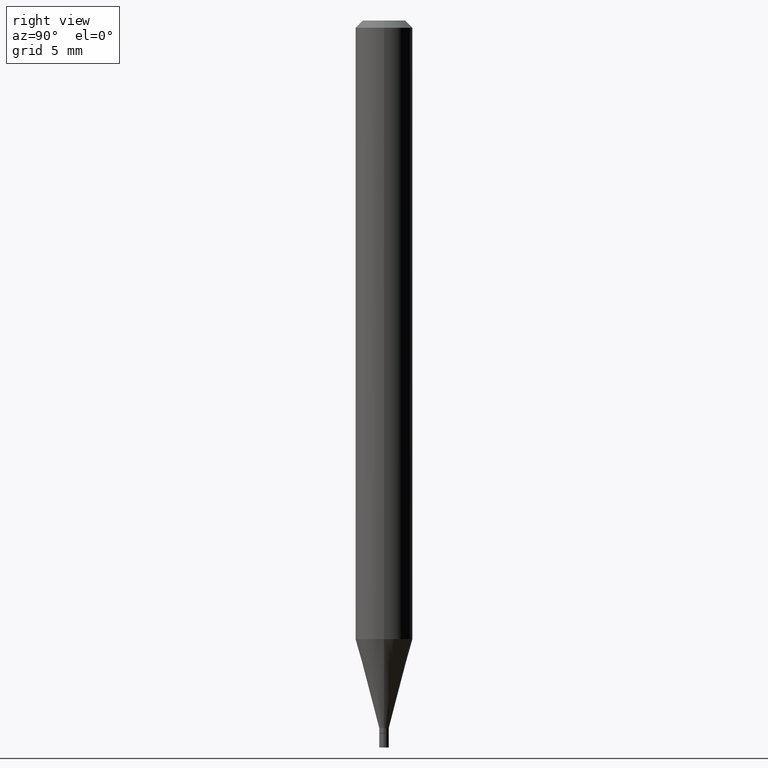
[diagram: clean part render]
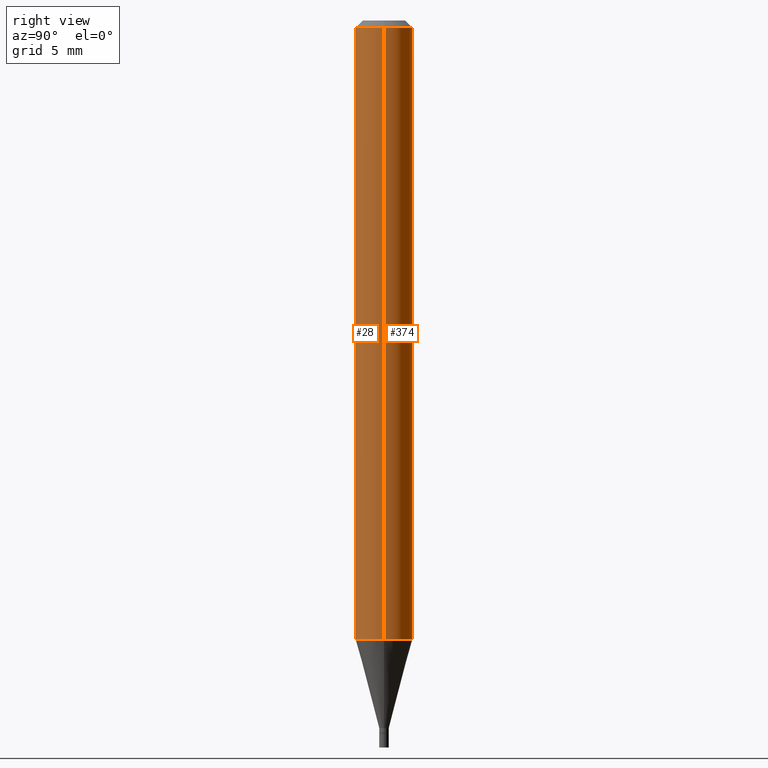
[diagram: same view with one multi-face feature highlighted, each face labeled with its STEP entity id]
A machine part, right view. The highlighted faces form ONE feature: a constant-radius fillet chain: 2 tangent blend faces with common blend radius 1.4999 mm. The faces share edges in the B-rep.
Their STEP definitions:
[1] entity #28 (Cylinder):
#2 = DIRECTION ( 'NONE',  ( -2.445468806185136877E-29, 3.491481338843145188E-15, 1.000000000000000000 ) ) ;
#10 = VECTOR ( 'NONE', #58, 39.37007874015748143 ) ;
#12 = ORIENTED_EDGE ( 'NONE', *, *, #289, .T. ) ;
#24 = ORIENTED_EDGE ( 'NONE', *, *, #135, .F. ) ;
#28 = ADVANCED_FACE ( 'NONE', ( #148 ), #100, .T. ) ;
#36 = DIRECTION ( 'NONE',  ( 1.000000000000000000, -6.982962677686273021E-15, 0.000000000000000000 ) ) ;
#46 = DIRECTION ( 'NONE',  ( -2.445468806185136597E-29, 3.491481338843145583E-15, 1.000000000000000000 ) ) ;
#53 = AXIS2_PLACEMENT_3D ( 'NONE', #294, #258, #351 ) ;
#58 = DIRECTION ( 'NONE',  ( -2.445468806185136877E-29, 3.491481338843145188E-15, 1.000000000000000000 ) ) ;
#93 = CIRCLE ( 'NONE', #422, 0.05904999999999999832 ) ;
#95 = CARTESIAN_POINT ( 'NONE',  ( -0.05904999999999999832, -1.834844512474547431E-15, -0.01499999999999999944 ) ) ;
#100 = CYLINDRICAL_SURFACE ( 'NONE', #53, 0.05904999999999999832 ) ;
#113 = CIRCLE ( 'NONE', #224, 0.05904999999999999832 ) ;
#135 = EDGE_CURVE ( 'NONE', #364, #317, #113, .T. ) ;
#148 = FACE_OUTER_BOUND ( 'NONE', #386, .T. ) ;
#158 = CARTESIAN_POINT ( 'NONE',  ( 0.05904999999999999832, -4.123439461173740327E-16, 2.879382386107500220E-30 ) ) ;
#166 = ORIENTED_EDGE ( 'NONE', *, *, #448, .F. ) ;
#186 = DIRECTION ( 'NONE',  ( 1.000000000000000000, -6.982962677686266711E-15, 0.000000000000000000 ) ) ;
#224 = AXIS2_PLACEMENT_3D ( 'NONE', #437, #46, #186 ) ;
#228 = LINE ( 'NONE', #158, #10 ) ;
#250 = DIRECTION ( 'NONE',  ( -2.445468806185136597E-29, 3.491481338843145583E-15, 1.000000000000000000 ) ) ;
#258 = DIRECTION ( 'NONE',  ( -2.445468806185136597E-29, 3.491481338843145583E-15, 1.000000000000000000 ) ) ;
#263 = ORIENTED_EDGE ( 'NONE', *, *, #441, .T. ) ;
#270 = CARTESIAN_POINT ( 'NONE',  ( 0.05904999999999999138, -4.868811721916501294E-15, -1.276383100267611814 ) ) ;
#281 = CARTESIAN_POINT ( 'NONE',  ( -0.05904999999999999832, 4.195754854663391478E-16, -2.904631170795521892E-30 ) ) ;
#289 = EDGE_CURVE ( 'NONE', #329, #317, #228, .T. ) ;
#294 = CARTESIAN_POINT ( 'NONE',  ( 0.000000000000000000, 0.000000000000000000, 0.000000000000000000 ) ) ;
#317 = VERTEX_POINT ( 'NONE', #417 ) ;
#329 = VERTEX_POINT ( 'NONE', #270 ) ;
#351 = DIRECTION ( 'NONE',  ( 1.000000000000000000, -6.982962677686266711E-15, 4.876176775795936353E-29 ) ) ;
#364 = VERTEX_POINT ( 'NONE', #95 ) ;
#386 = EDGE_LOOP ( 'NONE', ( #166, #263, #12, #24 ) ) ;
#398 = CARTESIAN_POINT ( 'NONE',  ( 3.121355056446320430E-29, -4.456467775799125585E-15, -1.276383100267611814 ) ) ;
#417 = CARTESIAN_POINT ( 'NONE',  ( 0.05904999999999999832, -4.647161662000212105E-16, -0.01499999999999999944 ) ) ;
#420 = VECTOR ( 'NONE', #2, 39.37007874015748143 ) ;
#422 = AXIS2_PLACEMENT_3D ( 'NONE', #398, #250, #36 ) ;
#425 = CARTESIAN_POINT ( 'NONE',  ( -0.05904999999999999138, -4.036892290332787669E-15, -1.276383100267611814 ) ) ;
#432 = VERTEX_POINT ( 'NONE', #425 ) ;
#437 = CARTESIAN_POINT ( 'NONE',  ( 3.668203209277705088E-31, -5.237222008264718399E-17, -0.01499999999999999944 ) ) ;
#441 = EDGE_CURVE ( 'NONE', #432, #329, #93, .T. ) ;
#448 = EDGE_CURVE ( 'NONE', #432, #364, #466, .T. ) ;
#466 = LINE ( 'NONE', #281, #420 ) ;
[2] entity #374 (Cylinder):
#2 = DIRECTION ( 'NONE',  ( -2.445468806185136877E-29, 3.491481338843145188E-15, 1.000000000000000000 ) ) ;
#10 = VECTOR ( 'NONE', #58, 39.37007874015748143 ) ;
#49 = CARTESIAN_POINT ( 'NONE',  ( 3.668203209277705088E-31, -5.237222008264718399E-17, -0.01499999999999999944 ) ) ;
#58 = DIRECTION ( 'NONE',  ( -2.445468806185136877E-29, 3.491481338843145188E-15, 1.000000000000000000 ) ) ;
#65 = CARTESIAN_POINT ( 'NONE',  ( 0.000000000000000000, 0.000000000000000000, 0.000000000000000000 ) ) ;
#89 = ORIENTED_EDGE ( 'NONE', *, *, #289, .F. ) ;
#91 = DIRECTION ( 'NONE',  ( 1.000000000000000000, -6.982962677686273021E-15, 0.000000000000000000 ) ) ;
#95 = CARTESIAN_POINT ( 'NONE',  ( -0.05904999999999999832, -1.834844512474547431E-15, -0.01499999999999999944 ) ) ;
#124 = DIRECTION ( 'NONE',  ( -2.445468806185136597E-29, 3.491481338843145583E-15, 1.000000000000000000 ) ) ;
#143 = EDGE_CURVE ( 'NONE', #329, #432, #285, .T. ) ;
#158 = CARTESIAN_POINT ( 'NONE',  ( 0.05904999999999999832, -4.123439461173740327E-16, 2.879382386107500220E-30 ) ) ;
#177 = EDGE_CURVE ( 'NONE', #317, #364, #357, .T. ) ;
#180 = ORIENTED_EDGE ( 'NONE', *, *, #448, .T. ) ;
#183 = ORIENTED_EDGE ( 'NONE', *, *, #143, .T. ) ;
#184 = ORIENTED_EDGE ( 'NONE', *, *, #177, .F. ) ;
#199 = DIRECTION ( 'NONE',  ( -2.445468806185136597E-29, 3.491481338843145583E-15, 1.000000000000000000 ) ) ;
#201 = AXIS2_PLACEMENT_3D ( 'NONE', #444, #124, #91 ) ;
#204 = EDGE_LOOP ( 'NONE', ( #183, #180, #184, #89 ) ) ;
#228 = LINE ( 'NONE', #158, #10 ) ;
#235 = CYLINDRICAL_SURFACE ( 'NONE', #350, 0.05904999999999999832 ) ;
#270 = CARTESIAN_POINT ( 'NONE',  ( 0.05904999999999999138, -4.868811721916501294E-15, -1.276383100267611814 ) ) ;
#281 = CARTESIAN_POINT ( 'NONE',  ( -0.05904999999999999832, 4.195754854663391478E-16, -2.904631170795521892E-30 ) ) ;
#285 = CIRCLE ( 'NONE', #201, 0.05904999999999999832 ) ;
#289 = EDGE_CURVE ( 'NONE', #329, #317, #228, .T. ) ;
#307 = FACE_OUTER_BOUND ( 'NONE', #204, .T. ) ;
#314 = AXIS2_PLACEMENT_3D ( 'NONE', #49, #342, #451 ) ;
#317 = VERTEX_POINT ( 'NONE', #417 ) ;
#329 = VERTEX_POINT ( 'NONE', #270 ) ;
#342 = DIRECTION ( 'NONE',  ( -2.445468806185136597E-29, 3.491481338843145583E-15, 1.000000000000000000 ) ) ;
#350 = AXIS2_PLACEMENT_3D ( 'NONE', #65, #199, #456 ) ;
#357 = CIRCLE ( 'NONE', #314, 0.05904999999999999832 ) ;
#364 = VERTEX_POINT ( 'NONE', #95 ) ;
#374 = ADVANCED_FACE ( 'NONE', ( #307 ), #235, .T. ) ;
#417 = CARTESIAN_POINT ( 'NONE',  ( 0.05904999999999999832, -4.647161662000212105E-16, -0.01499999999999999944 ) ) ;
#420 = VECTOR ( 'NONE', #2, 39.37007874015748143 ) ;
#425 = CARTESIAN_POINT ( 'NONE',  ( -0.05904999999999999138, -4.036892290332787669E-15, -1.276383100267611814 ) ) ;
#432 = VERTEX_POINT ( 'NONE', #425 ) ;
#444 = CARTESIAN_POINT ( 'NONE',  ( 3.121355056446320430E-29, -4.456467775799125585E-15, -1.276383100267611814 ) ) ;
#448 = EDGE_CURVE ( 'NONE', #432, #364, #466, .T. ) ;
#451 = DIRECTION ( 'NONE',  ( 1.000000000000000000, -6.982962677686266711E-15, 0.000000000000000000 ) ) ;
#456 = DIRECTION ( 'NONE',  ( 1.000000000000000000, -6.982962677686266711E-15, 4.876176775795936353E-29 ) ) ;
#466 = LINE ( 'NONE', #281, #420 ) ;